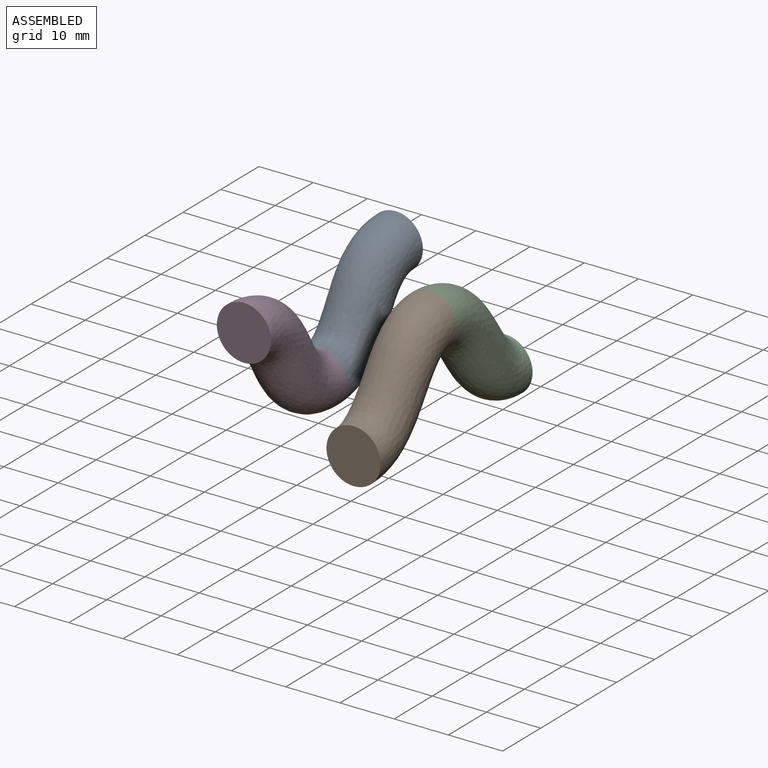
[diagram: assembled view]
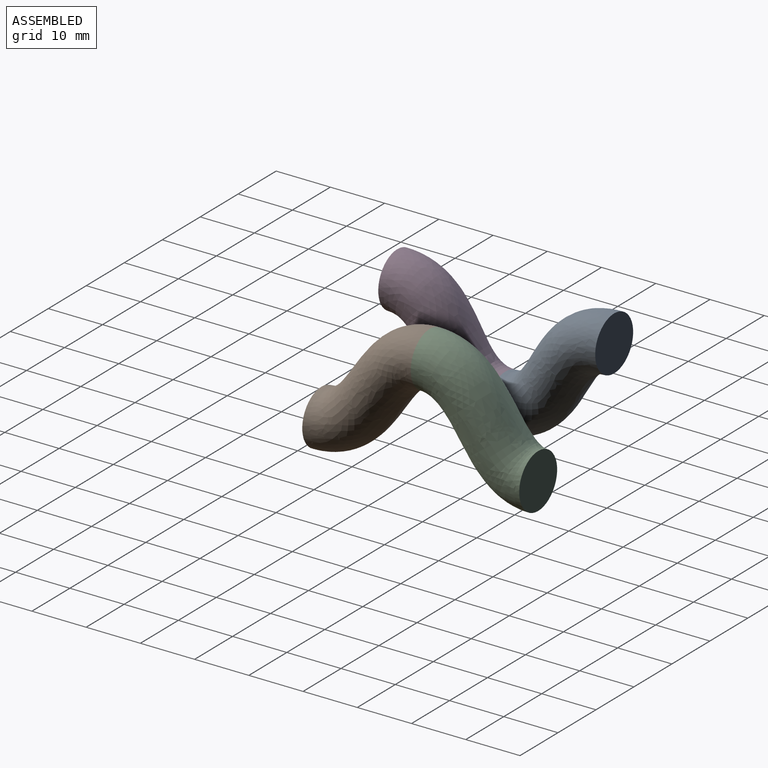
[diagram: assembled view, second angle]
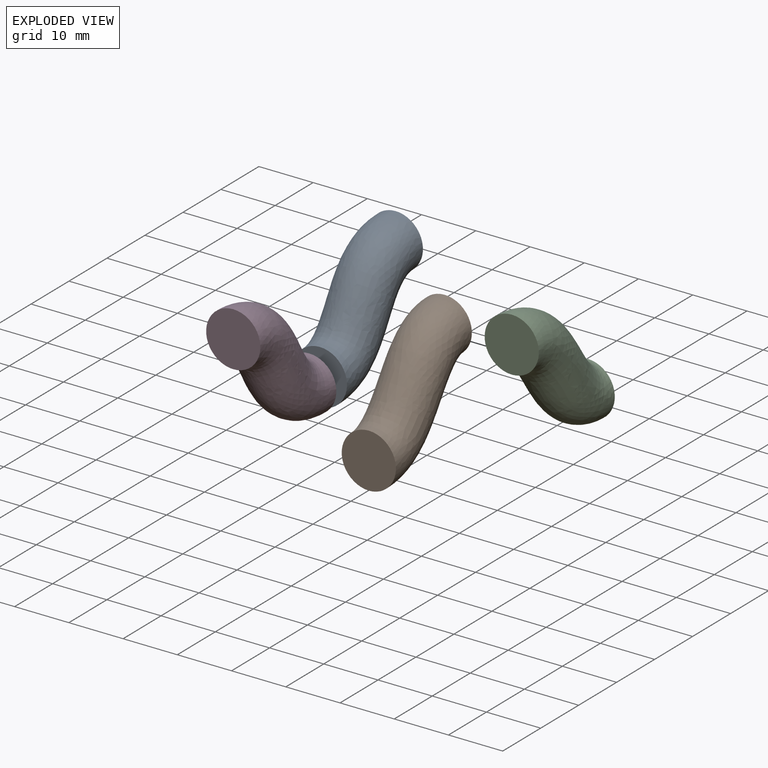
[diagram: exploded view]
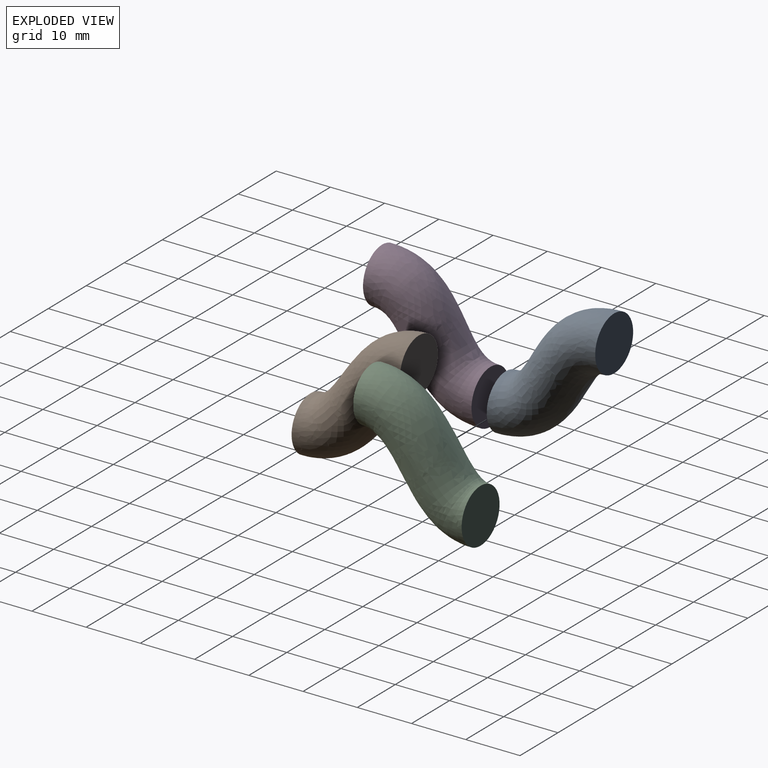
[diagram: exploded view, second angle]
ASSEMBLY  parts=4 mates=2
PART A: 3 faces, bbox 20x20x25 mm
  f0: plane 10x10mm, normal (0,-1,0), area 78.5mm2, adj f2
  f1: plane 10x10mm, normal (0,1,0), area 78.5mm2, adj f2
  f2: bspline ~25x20mm, area 832.6mm2, adj f0,f1
PART B: 3 faces, bbox 20x20x25 mm
  f0: plane 10x10mm, normal (0,1,0), area 78.5mm2, adj f2
  f1: plane 10x10mm, normal (0,-1,0), area 78.5mm2, adj f2
  f2: bspline ~25x20mm, area 822.5mm2, adj f0,f1
PART C: same geometry as B
PART D: same geometry as A
PLACE A rot(axis=(0,1,0),180deg) t=(-41.86,23.05,13.97)mm
PLACE B t=(-41.71,3.15,-1.24)mm
PLACE C rot(axis=(0,1,0),180deg) t=(-1.71,23.15,13.76)mm
PLACE D t=(-41.86,3.05,-1.03)mm
MATE fastened D.f1 <-> A.f0  axis (0,1,0) through (-41.86,3.05,-1.03)mm
MATE fastened B.f0 <-> C.f1  axis (0,1,0) through (-21.71,3.15,13.76)mm
